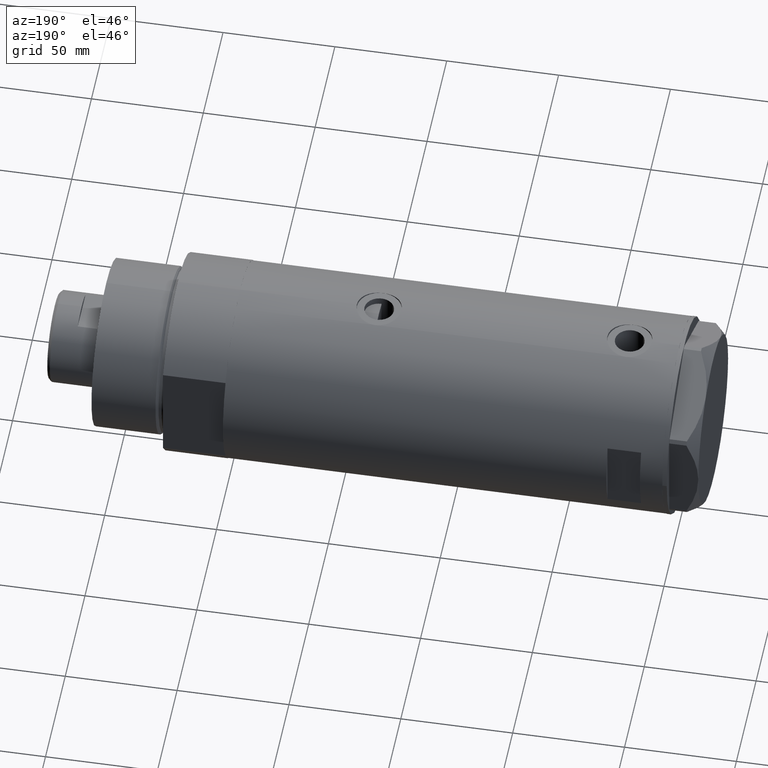
[diagram: clean part render]
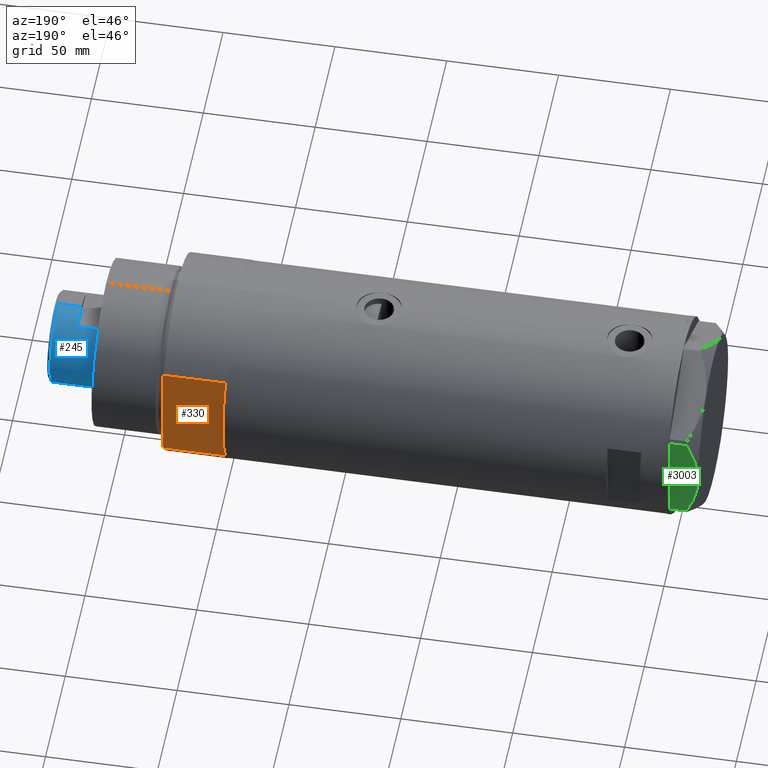
[diagram: same view with three faces highlighted in distinct colors, each labeled with its STEP entity id]
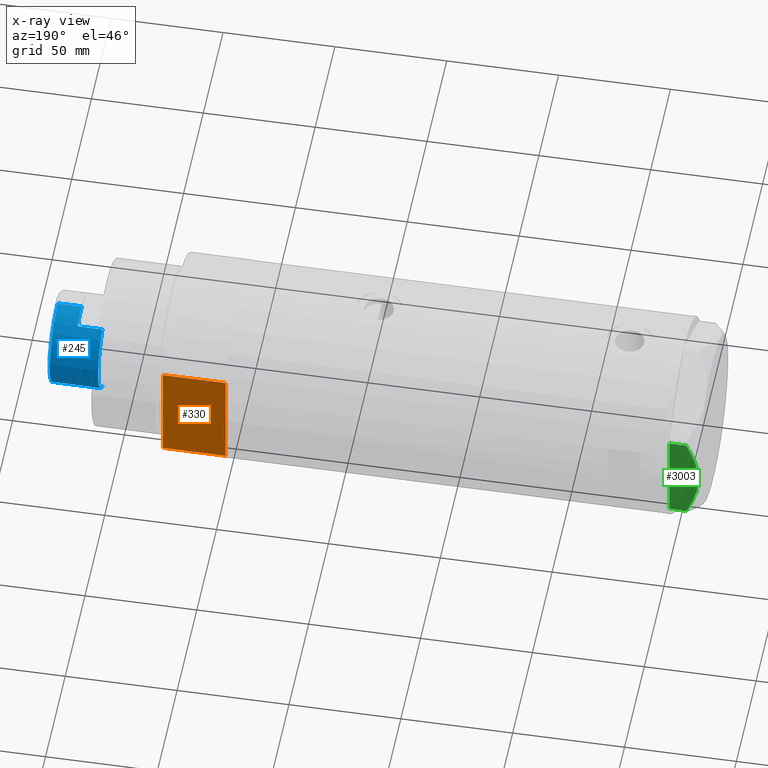
[diagram: x-ray of the same camera — body ghosted, the three highlighted faces saturated]
A machine part, auxiliary view with three faces highlighted in distinct colors.
The next image is the same camera in x-ray (body ghosted, the three faces saturated) — at least one of them is partly hidden behind the body in this view.
Their STEP definitions:

[orange] entity #330 — the highlighted planar face has unit normal (0, -1, -0).
#168 = ORIENTED_EDGE ( 'NONE', *, *, #4377, .F. ) ;
#217 = EDGE_CURVE ( 'NONE', #4492, #408, #1523, .T. ) ;
#330 = ADVANCED_FACE ( 'NONE', ( #1616 ), #2693, .F. ) ;
#408 = VERTEX_POINT ( 'NONE', #2963 ) ;
#452 = EDGE_CURVE ( 'NONE', #4492, #3304, #1854, .T. ) ;
#685 = LINE ( 'NONE', #2093, #1673 ) ;
#805 = VECTOR ( 'NONE', #1823, 1000.000000000000000 ) ;
#833 = ORIENTED_EDGE ( 'NONE', *, *, #2898, .F. ) ;
#1008 = CARTESIAN_POINT ( 'NONE',  ( -23.01629857296780557, 37.50000000000000000, 0.000000000000000000 ) ) ;
#1185 = CARTESIAN_POINT ( 'NONE',  ( -23.01629857296780557, 37.50000000000000000, 0.000000000000000000 ) ) ;
#1289 = EDGE_CURVE ( 'NONE', #3887, #4046, #2958, .T. ) ;
#1440 = VECTOR ( 'NONE', #4300, 1000.000000000000000 ) ;
#1489 = EDGE_LOOP ( 'NONE', ( #2339, #3073, #3701, #833, #168, #2789, #1914 ) ) ;
#1523 = LINE ( 'NONE', #1185, #2183 ) ;
#1616 = FACE_OUTER_BOUND ( 'NONE', #1489, .T. ) ;
#1673 = VECTOR ( 'NONE', #2477, 1000.000000000000000 ) ;
#1733 = DIRECTION ( 'NONE',  ( 1.000000000000000000, 0.000000000000000000, 0.000000000000000000 ) ) ;
#1823 = DIRECTION ( 'NONE',  ( 1.000000000000000000, 0.000000000000000000, 0.000000000000000000 ) ) ;
#1854 = LINE ( 'NONE', #4340, #1440 ) ;
#1897 = CARTESIAN_POINT ( 'NONE',  ( -23.01629857296780557, 37.50000000000000000, 0.000000000000000000 ) ) ;
#1914 = ORIENTED_EDGE ( 'NONE', *, *, #452, .T. ) ;
#1935 = VERTEX_POINT ( 'NONE', #4001 ) ;
#1972 = CARTESIAN_POINT ( 'NONE',  ( 0.000000000000000000, 37.50000000000000000, 27.89999999999999858 ) ) ;
#2086 = EDGE_CURVE ( 'NONE', #1935, #4046, #685, .T. ) ;
#2093 = CARTESIAN_POINT ( 'NONE',  ( 23.01629857296780557, 37.50000000000000000, 0.000000000000000000 ) ) ;
#2104 = AXIS2_PLACEMENT_3D ( 'NONE', #2333, #3429, #2717 ) ;
#2135 = LINE ( 'NONE', #3273, #805 ) ;
#2183 = VECTOR ( 'NONE', #2941, 1000.000000000000000 ) ;
#2333 = CARTESIAN_POINT ( 'NONE',  ( -23.01629857296780557, 37.50000000000000000, 0.000000000000000000 ) ) ;
#2339 = ORIENTED_EDGE ( 'NONE', *, *, #4048, .T. ) ;
#2477 = DIRECTION ( 'NONE',  ( -0.000000000000000000, -0.000000000000000000, 1.000000000000000000 ) ) ;
#2493 = CARTESIAN_POINT ( 'NONE',  ( 13.91941090707505957, 37.50000000000000000, 0.000000000000000000 ) ) ;
#2575 = VECTOR ( 'NONE', #3341, 1000.000000000000000 ) ;
#2633 = CARTESIAN_POINT ( 'NONE',  ( -23.01629857296780557, 37.50000000000000000, 0.000000000000000000 ) ) ;
#2657 = DIRECTION ( 'NONE',  ( 1.000000000000000000, 0.000000000000000000, 0.000000000000000000 ) ) ;
#2693 = PLANE ( 'NONE',  #2104 ) ;
#2717 = DIRECTION ( 'NONE',  ( 0.000000000000000000, -0.000000000000000000, -1.000000000000000000 ) ) ;
#2789 = ORIENTED_EDGE ( 'NONE', *, *, #217, .F. ) ;
#2840 = CARTESIAN_POINT ( 'NONE',  ( 23.01629857296780557, 37.50000000000000000, 27.89999999999999858 ) ) ;
#2898 = EDGE_CURVE ( 'NONE', #3059, #1935, #4368, .T. ) ;
#2941 = DIRECTION ( 'NONE',  ( 1.000000000000000000, 0.000000000000000000, 0.000000000000000000 ) ) ;
#2958 = LINE ( 'NONE', #3623, #3574 ) ;
#2959 = VECTOR ( 'NONE', #1733, 1000.000000000000000 ) ;
#2963 = CARTESIAN_POINT ( 'NONE',  ( -13.91941090707505957, 37.50000000000000000, 0.000000000000000000 ) ) ;
#3059 = VERTEX_POINT ( 'NONE', #2493 ) ;
#3073 = ORIENTED_EDGE ( 'NONE', *, *, #1289, .T. ) ;
#3273 = CARTESIAN_POINT ( 'NONE',  ( -23.01629857296780557, 37.50000000000000000, 27.89999999999999858 ) ) ;
#3304 = VERTEX_POINT ( 'NONE', #3532 ) ;
#3341 = DIRECTION ( 'NONE',  ( 1.000000000000000000, 0.000000000000000000, 0.000000000000000000 ) ) ;
#3429 = DIRECTION ( 'NONE',  ( 0.000000000000000000, -1.000000000000000000, 0.000000000000000000 ) ) ;
#3532 = CARTESIAN_POINT ( 'NONE',  ( -23.01629857296780557, 37.50000000000000000, 27.89999999999999858 ) ) ;
#3574 = VECTOR ( 'NONE', #2657, 1000.000000000000000 ) ;
#3623 = CARTESIAN_POINT ( 'NONE',  ( -23.01629857296780557, 37.50000000000000000, 27.89999999999999858 ) ) ;
#3701 = ORIENTED_EDGE ( 'NONE', *, *, #2086, .F. ) ;
#3887 = VERTEX_POINT ( 'NONE', #1972 ) ;
#4001 = CARTESIAN_POINT ( 'NONE',  ( 23.01629857296780557, 37.50000000000000000, 0.000000000000000000 ) ) ;
#4046 = VERTEX_POINT ( 'NONE', #2840 ) ;
#4048 = EDGE_CURVE ( 'NONE', #3304, #3887, #2135, .T. ) ;
#4300 = DIRECTION ( 'NONE',  ( -0.000000000000000000, -0.000000000000000000, 1.000000000000000000 ) ) ;
#4340 = CARTESIAN_POINT ( 'NONE',  ( -23.01629857296780557, 37.50000000000000000, 0.000000000000000000 ) ) ;
#4368 = LINE ( 'NONE', #2633, #2575 ) ;
#4377 = EDGE_CURVE ( 'NONE', #408, #3059, #4497, .T. ) ;
#4492 = VERTEX_POINT ( 'NONE', #1897 ) ;
#4497 = LINE ( 'NONE', #1008, #2959 ) ;

[blue] entity #245 — the highlighted cylindrical surface (partial cylindrical patch) has radius 20.5 mm, axis along (-1, -0, 0).
#34 = DIRECTION ( 'NONE',  ( 1.000000000000000000, 0.000000000000000000, 0.000000000000000000 ) ) ;
#57 = ORIENTED_EDGE ( 'NONE', *, *, #2587, .F. ) ;
#117 = CARTESIAN_POINT ( 'NONE',  ( 17.97852886083842705, 9.849999999999997868, 241.3000000000000114 ) ) ;
#245 = ADVANCED_FACE ( 'NONE', ( #842 ), #1501, .T. ) ;
#360 = DIRECTION ( 'NONE',  ( 0.000000000000000000, 0.000000000000000000, -1.000000000000000000 ) ) ;
#415 = DIRECTION ( 'NONE',  ( 0.000000000000000000, 0.000000000000000000, 1.000000000000000000 ) ) ;
#624 = CARTESIAN_POINT ( 'NONE',  ( 20.50000000000000355, 2.510525938252074481E-15, 241.3000000000000114 ) ) ;
#625 = AXIS2_PLACEMENT_3D ( 'NONE', #2223, #2593, #1548 ) ;
#653 = AXIS2_PLACEMENT_3D ( 'NONE', #1434, #415, #34 ) ;
#686 = LINE ( 'NONE', #1062, #2422 ) ;
#744 = VERTEX_POINT ( 'NONE', #2622 ) ;
#767 = ORIENTED_EDGE ( 'NONE', *, *, #1315, .F. ) ;
#842 = FACE_OUTER_BOUND ( 'NONE', #4147, .T. ) ;
#1057 = EDGE_CURVE ( 'NONE', #3983, #3899, #3072, .T. ) ;
#1062 = CARTESIAN_POINT ( 'NONE',  ( -20.50000000000000355, 0.000000000000000000, 241.3000000000000114 ) ) ;
#1082 = AXIS2_PLACEMENT_3D ( 'NONE', #3842, #4244, #3478 ) ;
#1105 = CIRCLE ( 'NONE', #2131, 20.50000000000000355 ) ;
#1210 = ORIENTED_EDGE ( 'NONE', *, *, #3159, .T. ) ;
#1211 = VERTEX_POINT ( 'NONE', #3607 ) ;
#1249 = CIRCLE ( 'NONE', #3809, 20.49999999999998934 ) ;
#1315 = EDGE_CURVE ( 'NONE', #3983, #1211, #4391, .T. ) ;
#1434 = CARTESIAN_POINT ( 'NONE',  ( 0.000000000000000000, 0.000000000000000000, 241.3000000000000114 ) ) ;
#1501 = CYLINDRICAL_SURFACE ( 'NONE', #625, 20.50000000000000355 ) ;
#1504 = EDGE_CURVE ( 'NONE', #2432, #1699, #2655, .T. ) ;
#1548 = DIRECTION ( 'NONE',  ( -1.000000000000000000, 0.000000000000000000, 0.000000000000000000 ) ) ;
#1672 = CARTESIAN_POINT ( 'NONE',  ( 17.97852886083842705, 9.849999999999997868, 241.3000000000000114 ) ) ;
#1689 = DIRECTION ( 'NONE',  ( 1.000000000000000000, 0.000000000000000000, 0.000000000000000000 ) ) ;
#1699 = VERTEX_POINT ( 'NONE', #1776 ) ;
#1776 = CARTESIAN_POINT ( 'NONE',  ( 20.50000000000000000, 2.510525938252074481E-15, 241.3000000000000114 ) ) ;
#1839 = DIRECTION ( 'NONE',  ( 1.000000000000000000, 0.000000000000000000, 0.000000000000000000 ) ) ;
#1940 = CARTESIAN_POINT ( 'NONE',  ( -17.97852886083842705, 9.849999999999997868, 241.3000000000000114 ) ) ;
#2035 = DIRECTION ( 'NONE',  ( 0.000000000000000000, 0.000000000000000000, 1.000000000000000000 ) ) ;
#2102 = CARTESIAN_POINT ( 'NONE',  ( 0.000000000000000000, 0.000000000000000000, 230.3000000000000114 ) ) ;
#2131 = AXIS2_PLACEMENT_3D ( 'NONE', #2570, #360, #1839 ) ;
#2202 = VERTEX_POINT ( 'NONE', #117 ) ;
#2223 = CARTESIAN_POINT ( 'NONE',  ( 0.000000000000000000, 0.000000000000000000, 241.3000000000000114 ) ) ;
#2302 = DIRECTION ( 'NONE',  ( -0.000000000000000000, -0.000000000000000000, -1.000000000000000000 ) ) ;
#2319 = CARTESIAN_POINT ( 'NONE',  ( 20.50000000000000355, 2.510525938252074481E-15, 251.9000000000001194 ) ) ;
#2422 = VECTOR ( 'NONE', #4139, 1000.000000000000000 ) ;
#2432 = VERTEX_POINT ( 'NONE', #2319 ) ;
#2570 = CARTESIAN_POINT ( 'NONE',  ( 0.000000000000000000, 0.000000000000000000, 251.9000000000001194 ) ) ;
#2587 = EDGE_CURVE ( 'NONE', #744, #3899, #686, .T. ) ;
#2593 = DIRECTION ( 'NONE',  ( -0.000000000000000000, -0.000000000000000000, -1.000000000000000000 ) ) ;
#2622 = CARTESIAN_POINT ( 'NONE',  ( -20.50000000000000355, 0.000000000000000000, 251.9000000000001194 ) ) ;
#2655 = LINE ( 'NONE', #624, #3297 ) ;
#2686 = LINE ( 'NONE', #1672, #3240 ) ;
#2859 = VERTEX_POINT ( 'NONE', #4417 ) ;
#2880 = CIRCLE ( 'NONE', #653, 20.50000000000000000 ) ;
#3072 = CIRCLE ( 'NONE', #1082, 20.50000000000000000 ) ;
#3088 = CARTESIAN_POINT ( 'NONE',  ( -20.50000000000000000, 0.000000000000000000, 241.3000000000000114 ) ) ;
#3128 = CARTESIAN_POINT ( 'NONE',  ( -17.97852886083842705, 9.849999999999997868, 241.3000000000000114 ) ) ;
#3159 = EDGE_CURVE ( 'NONE', #2859, #1211, #1249, .T. ) ;
#3196 = ORIENTED_EDGE ( 'NONE', *, *, #1504, .T. ) ;
#3240 = VECTOR ( 'NONE', #4080, 1000.000000000000000 ) ;
#3280 = ORIENTED_EDGE ( 'NONE', *, *, #3832, .T. ) ;
#3297 = VECTOR ( 'NONE', #2302, 1000.000000000000000 ) ;
#3393 = EDGE_CURVE ( 'NONE', #1699, #2202, #2880, .T. ) ;
#3433 = ORIENTED_EDGE ( 'NONE', *, *, #3855, .T. ) ;
#3478 = DIRECTION ( 'NONE',  ( 1.000000000000000000, 0.000000000000000000, 0.000000000000000000 ) ) ;
#3607 = CARTESIAN_POINT ( 'NONE',  ( -17.97852886083842705, 9.849999999999965894, 230.3000000000000114 ) ) ;
#3709 = DIRECTION ( 'NONE',  ( -0.000000000000000000, -0.000000000000000000, -1.000000000000000000 ) ) ;
#3809 = AXIS2_PLACEMENT_3D ( 'NONE', #2102, #2035, #1689 ) ;
#3832 = EDGE_CURVE ( 'NONE', #744, #2432, #1105, .T. ) ;
#3842 = CARTESIAN_POINT ( 'NONE',  ( 0.000000000000000000, 0.000000000000000000, 241.3000000000000114 ) ) ;
#3855 = EDGE_CURVE ( 'NONE', #2202, #2859, #2686, .T. ) ;
#3899 = VERTEX_POINT ( 'NONE', #3088 ) ;
#3914 = ORIENTED_EDGE ( 'NONE', *, *, #3393, .T. ) ;
#3942 = VECTOR ( 'NONE', #3709, 1000.000000000000000 ) ;
#3983 = VERTEX_POINT ( 'NONE', #3128 ) ;
#4080 = DIRECTION ( 'NONE',  ( -0.000000000000000000, -0.000000000000000000, -1.000000000000000000 ) ) ;
#4090 = ORIENTED_EDGE ( 'NONE', *, *, #1057, .T. ) ;
#4139 = DIRECTION ( 'NONE',  ( -0.000000000000000000, -0.000000000000000000, -1.000000000000000000 ) ) ;
#4147 = EDGE_LOOP ( 'NONE', ( #3280, #3196, #3914, #3433, #1210, #767, #4090, #57 ) ) ;
#4244 = DIRECTION ( 'NONE',  ( 0.000000000000000000, 0.000000000000000000, 1.000000000000000000 ) ) ;
#4391 = LINE ( 'NONE', #1940, #3942 ) ;
#4417 = CARTESIAN_POINT ( 'NONE',  ( 17.97852886083842705, 9.849999999999997868, 230.3000000000000114 ) ) ;

[green] entity #3003 — the highlighted planar face has unit normal (0, -1, -0).
#144 = CARTESIAN_POINT ( 'NONE',  ( 37.75000000000002132, -21.79497266190837124, 0.000000000000000000 ) ) ;
#196 = VERTEX_POINT ( 'NONE', #4017 ) ;
#250 = CARTESIAN_POINT ( 'NONE',  ( 37.75000000000000000, 17.40390235304479560, 9.187919079516760235 ) ) ;
#253 = PLANE ( 'NONE',  #2656 ) ;
#282 = VECTOR ( 'NONE', #1277, 1000.000000000000000 ) ;
#303 = CARTESIAN_POINT ( 'NONE',  ( 37.75000000000000000, -3.615248338761618552, 12.99999999999998934 ) ) ;
#381 = VERTEX_POINT ( 'NONE', #3255 ) ;
#503 = EDGE_CURVE ( 'NONE', #381, #196, #2787, .T. ) ;
#512 = CARTESIAN_POINT ( 'NONE',  ( 37.75000000000000000, 20.67497266190835958, 0.000000000000000000 ) ) ;
#583 = CARTESIAN_POINT ( 'NONE',  ( 37.75000000000000711, 3.611424898442247233, 12.83826937481875596 ) ) ;
#604 = CARTESIAN_POINT ( 'NONE',  ( 37.75000000000000711, 12.34877760086738441, 11.06613894200179260 ) ) ;
#639 = ORIENTED_EDGE ( 'NONE', *, *, #4339, .T. ) ;
#659 = CARTESIAN_POINT ( 'NONE',  ( 37.75000000000002132, -14.04433099034386778, 10.48027127384610679 ) ) ;
#1055 = CARTESIAN_POINT ( 'NONE',  ( 37.75000000000001421, -12.33018559404072256, 11.04557586999680296 ) ) ;
#1058 = FACE_OUTER_BOUND ( 'NONE', #3122, .T. ) ;
#1168 = CARTESIAN_POINT ( 'NONE',  ( 37.75000000000002132, -20.67497266190835958, 13.00000000000000000 ) ) ;
#1182 = VECTOR ( 'NONE', #2826, 1000.000000000000000 ) ;
#1245 = CARTESIAN_POINT ( 'NONE',  ( 37.75000000000000000, 19.86857906850807964, 8.096480699986591034 ) ) ;
#1277 = DIRECTION ( 'NONE',  ( -4.775569585389645902E-16, 1.000000000000000000, 0.000000000000000000 ) ) ;
#1311 = CARTESIAN_POINT ( 'NONE',  ( 37.75000000000000000, 14.04742653794396823, 10.50092616350622166 ) ) ;
#1313 = CARTESIAN_POINT ( 'NONE',  ( 37.75000000000002132, -17.42329546264822682, 9.202188366597432889 ) ) ;
#1345 = ORIENTED_EDGE ( 'NONE', *, *, #503, .F. ) ;
#1363 = LINE ( 'NONE', #4446, #1182 ) ;
#1390 = B_SPLINE_CURVE_WITH_KNOTS ( 'NONE', 3,
 ( #1998, #4435, #1313, #1469, #659, #1055, #2069, #3833, #303, #1441 ),
 .UNSPECIFIED., .F., .F.,
 ( 4, 2, 2, 2, 4 ),
 ( 0.05601050456479946676, 0.06138217239161374711, 0.06406800630502089422, 0.06675384021842803439, 0.07749717587205659508 ),
 .UNSPECIFIED. ) ;
#1401 = DIRECTION ( 'NONE',  ( -1.000000000000000000, -4.775569585389645902E-16, 0.000000000000000000 ) ) ;
#1441 = CARTESIAN_POINT ( 'NONE',  ( 37.75000000000000711, 1.802777518484591547E-14, 13.00000000000000000 ) ) ;
#1469 = CARTESIAN_POINT ( 'NONE',  ( 37.75000000000001421, -14.89874562435959504, 10.17375260246623547 ) ) ;
#1544 = VECTOR ( 'NONE', #3917, 1000.000000000000000 ) ;
#1637 = LINE ( 'NONE', #144, #282 ) ;
#1653 = CARTESIAN_POINT ( 'NONE',  ( 37.75000000000000711, 4.503994958793054337, 12.74237531377021604 ) ) ;
#1964 = ORIENTED_EDGE ( 'NONE', *, *, #3682, .T. ) ;
#1998 = CARTESIAN_POINT ( 'NONE',  ( 37.75000000000002132, -20.67497266190837024, 7.709124142616982311 ) ) ;
#2018 = CARTESIAN_POINT ( 'NONE',  ( 37.75000000000000711, 16.56731140591521978, 9.531835068628826235 ) ) ;
#2069 = CARTESIAN_POINT ( 'NONE',  ( 37.75000000000002132, -11.46926194450820802, 11.30493988086502632 ) ) ;
#2071 = DIRECTION ( 'NONE',  ( 4.775569585389645902E-16, -1.000000000000000000, 0.000000000000000000 ) ) ;
#2353 = CARTESIAN_POINT ( 'NONE',  ( 37.75000000000000711, 1.802777518484591547E-14, 13.00000000000000000 ) ) ;
#2396 = CARTESIAN_POINT ( 'NONE',  ( 37.75000000000000711, 0.9015134592203699615, 12.99999999999999112 ) ) ;
#2452 = CARTESIAN_POINT ( 'NONE',  ( 37.75000000000002132, -20.67497266190837024, 7.709124142616982311 ) ) ;
#2656 = AXIS2_PLACEMENT_3D ( 'NONE', #3810, #1401, #2071 ) ;
#2682 = ORIENTED_EDGE ( 'NONE', *, *, #3365, .T. ) ;
#2787 = B_SPLINE_CURVE_WITH_KNOTS ( 'NONE', 3,
 ( #2353, #2396, #3743, #583, #1653, #3425, #3065, #604, #1311, #2018, #250, #4120, #1245, #3087 ),
 .UNSPECIFIED., .F., .F.,
 ( 4, 2, 2, 2, 2, 2, 4 ),
 ( 0.07749717587205659508, 0.08017617902235897598, 0.08285518217266137075, 0.08821318847326614643, 0.09357119477387092210, 0.09625019792417330300, 0.09892920107447569777 ),
 .UNSPECIFIED. ) ;
#2823 = VERTEX_POINT ( 'NONE', #512 ) ;
#2826 = DIRECTION ( 'NONE',  ( 0.000000000000000000, 0.000000000000000000, 1.000000000000000000 ) ) ;
#2991 = VERTEX_POINT ( 'NONE', #2452 ) ;
#3003 = ADVANCED_FACE ( 'NONE', ( #1058 ), #253, .F. ) ;
#3065 = CARTESIAN_POINT ( 'NONE',  ( 37.75000000000000711, 8.905753572404311313, 11.99914237172014353 ) ) ;
#3087 = CARTESIAN_POINT ( 'NONE',  ( 37.75000000000000000, 20.67497266190835958, 7.709124142616976094 ) ) ;
#3122 = EDGE_LOOP ( 'NONE', ( #4176, #2682, #639, #1964, #1345 ) ) ;
#3169 = VERTEX_POINT ( 'NONE', #4198 ) ;
#3216 = LINE ( 'NONE', #1168, #1544 ) ;
#3255 = CARTESIAN_POINT ( 'NONE',  ( 37.75000000000000711, 1.802777518484591547E-14, 13.00000000000000000 ) ) ;
#3365 = EDGE_CURVE ( 'NONE', #2991, #3169, #3216, .T. ) ;
#3425 = CARTESIAN_POINT ( 'NONE',  ( 37.75000000000000000, 7.161343005612795132, 12.36677985830370829 ) ) ;
#3682 = EDGE_CURVE ( 'NONE', #2823, #196, #1363, .T. ) ;
#3743 = CARTESIAN_POINT ( 'NONE',  ( 37.75000000000000000, 1.811728074765807994, 12.96720910498919466 ) ) ;
#3810 = CARTESIAN_POINT ( 'NONE',  ( 37.75000000000002132, -21.79497266190837124, 13.00000000000000000 ) ) ;
#3833 = CARTESIAN_POINT ( 'NONE',  ( 37.75000000000000711, -7.143641079404811300, 12.47474846747315347 ) ) ;
#3917 = DIRECTION ( 'NONE',  ( 0.000000000000000000, 0.000000000000000000, -1.000000000000000000 ) ) ;
#3970 = EDGE_CURVE ( 'NONE', #2991, #381, #1390, .T. ) ;
#4017 = CARTESIAN_POINT ( 'NONE',  ( 37.75000000000000000, 20.67497266190835958, 7.709124142616976094 ) ) ;
#4120 = CARTESIAN_POINT ( 'NONE',  ( 37.75000000000000000, 19.05362936076134162, 8.470554105526112210 ) ) ;
#4176 = ORIENTED_EDGE ( 'NONE', *, *, #3970, .F. ) ;
#4198 = CARTESIAN_POINT ( 'NONE',  ( 37.75000000000002132, -20.67497266190835958, 0.000000000000000000 ) ) ;
#4339 = EDGE_CURVE ( 'NONE', #3169, #2823, #1637, .T. ) ;
#4435 = CARTESIAN_POINT ( 'NONE',  ( 37.75000000000001421, -19.06473524669325315, 8.482612457517156201 ) ) ;
#4446 = CARTESIAN_POINT ( 'NONE',  ( 37.75000000000000000, 20.67497266190835958, 13.00000000000000000 ) ) ;